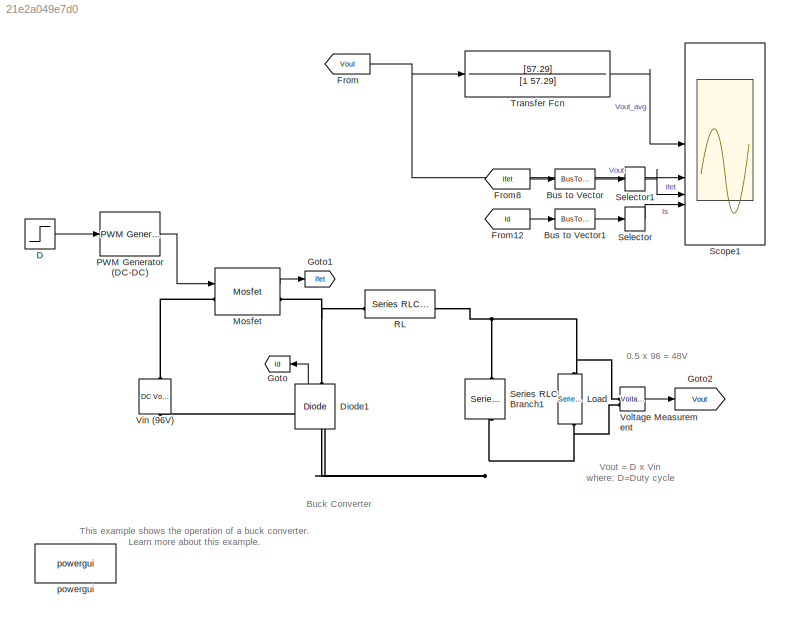
MODEL slx_21e2a049e7d0
KIND model
CONFIG AbsTol = auto
CONFIG EnableMultiTasking = on
CONFIG FixedStep = auto
CONFIG MaxStep = 1e-4
CONFIG MinStep = auto
CONFIG RelTol = 1e-4
CONFIG SampleTimeConstraint = Unconstrained
CONFIG SolverName = VariableStepAuto
CONFIG StartTime = 0.0
CONFIG StopTime = 0.008
BLOCK [BusToVector] Bus to Vector
BLOCK [BusToVector] Bus to Vector1
BLOCK [Step] D
  After = D_op
  Before = 0.5
  SampleTime = 0
  Time = 0.0035
BLOCK [Reference] Diode1  REF=spsDiodeLib/Diode
  LibrarySourceBlock = sps_lib/Power Electronics/Diode
  NameLocation = right
  SourceBlock = spsDiodeLib/Diode
  SourceType = Diode
BLOCK [From] From
  GotoTag = Vout
BLOCK [From] From12
  GotoTag = Id
BLOCK [From] From8
  GotoTag = Ifet
BLOCK [Goto] Goto
  GotoTag = Id
BLOCK [Goto] Goto1
  GotoTag = Ifet
BLOCK [Goto] Goto2
  GotoTag = Vout
BLOCK [Reference] Load  REF=spsSeriesRLCBranchLib/Series RLC Branch
  LibrarySourceBlock = sps_lib/Passives/Series RLC Branch
  NameLocation = left
  SourceBlock = spsSeriesRLCBranchLib/Series RLC Branch
  SourceType = Series RLC Branch
BLOCK [Reference] Mosfet  REF=spsMosfetLib/Mosfet
  LibrarySourceBlock = sps_lib/Power Electronics/Mosfet
  SourceBlock = spsMosfetLib/Mosfet
  SourceType = Mosfet
BLOCK [Reference] PWM Generator (DC-DC)  REF=spsPWMGeneratorDCDCLib/PWM Generator
(DC-DC)
  LibrarySourceBlock = sps_lib/Power Electronics/Power Electronics Control/PWM Generator\n(DC-DC)
  NameLocation = top
  SourceBlock = spsPWMGeneratorDCDCLib/PWM Generator\n(DC-DC)
  SourceType = PWM Generator (DC-DC)
BLOCK [Reference] RL  REF=spsSeriesRLCBranchLib/Series RLC Branch
  LibrarySourceBlock = sps_lib/Passives/Series RLC Branch
  SourceBlock = spsSeriesRLCBranchLib/Series RLC Branch
  SourceType = Series RLC Branch
BLOCK [Scope] Scope1
  Floating = off
  NumInputPorts = 4
  ScopeSpecificationString = Simulink.scopes.TimeScopeBlockCfg('CurrentConfiguration', extmgr.ConfigurationSet(extmgr.Configuration('Core','General UI',true),extmgr.Configuration('Core','Source UI',true),extmgr.Configuration('Sources','WiredSimulink',true),extmgr.Configuration('Visuals','Time Domain',true,'SerializedDisplays',{struct('MinYLimReal','-2.22905','MaxYLimReal','20.06148','YLabelReal','','MinYLimMag','0.00000','Max...<+3385ch>
BLOCK [Selector] Selector
  IndexOptions = Index vector (dialog)
  Indices = 1
  InputPortWidth = 2
  OutputSizes = 1
BLOCK [Selector] Selector1
  IndexOptions = Index vector (dialog)
  Indices = 1
  InputPortWidth = 2
  OutputSizes = 1
BLOCK [Reference] Series RLC Branch1  REF=spsSeriesRLCBranchLib/Series RLC Branch
  LibrarySourceBlock = sps_lib/Passives/Series RLC Branch
  NameLocation = left
  SourceBlock = spsSeriesRLCBranchLib/Series RLC Branch
  SourceType = Series RLC Branch
BLOCK [TransferFcn] Transfer Fcn
  Denominator = [1 57.29]
  Numerator = [57.29]
BLOCK [Reference] Vin (96V)  REF=spsDCVoltageSourceLib/DC Voltage Source
  LibrarySourceBlock = sps_lib/Sources/DC Voltage Source
  NameLocation = left
  SourceBlock = spsDCVoltageSourceLib/DC Voltage Source
  SourceType = DC Voltage Source
BLOCK [Reference] Voltage Measurement  REF=spsVoltageMeasurementLib/Voltage Measurement
  LibrarySourceBlock = sps_lib/Sensors and Measurements/Voltage Measurement
  SourceBlock = spsVoltageMeasurementLib/Voltage Measurement
  SourceType = Voltage Measurement
  UserDataPersistent = on
BLOCK [Reference] powergui  REF=sps_lib/powergui
  LibrarySourceBlock = sps_lib/powergui
  Priority = 1
  SourceBlock = sps_lib/powergui
  SourceType = PSB option menu block
ANNOTATION (root): 0.5 x 96 = 48V
ANNOTATION (root): This example shows the operation of a buck converter. Learn more about this example.
ANNOTATION (root): Vout = D x Vin where: D=Duty cycle
ANNOTATION (root): Buck Converter
LINE Bus to Vector1:1 -> Selector:1
LINE Bus to Vector:1 -> Selector1:1
LINE D:1 -> PWM Generator (DC-DC):1
LINE Diode1:1 -> Goto:1
LINE From12:1 -> Bus to Vector1:1
LINE From8:1 -> Bus to Vector:1
NET From:1 -> Scope1:2, Transfer Fcn:1
LINE Mosfet:1 -> Goto1:1
LINE PWM Generator (DC-DC):1 -> Mosfet:1
LINE Selector1:1 -> Scope1:3
LINE Selector:1 -> Scope1:4
LINE Transfer Fcn:1 -> Scope1:1
LINE Voltage Measurement:1 -> Goto2:1
PNET net1: Diode1:LConn1 -- Load:RConn1 -- Series RLC Branch1:RConn1 -- Vin (96V):LConn1 -- Voltage Measurement:LConn2
PNET net2: Diode1:RConn1 -- Mosfet:RConn1 -- RL:LConn1
PNET net3: Load:LConn1 -- RL:RConn1 -- Series RLC Branch1:LConn1 -- Voltage Measurement:LConn1
PLINE Mosfet:LConn1 -- Vin (96V):RConn1
note: NET lines group one-source signal fan-out (src -> all destinations, sorted); 1:1 wires keep LINE; PNET lines group multi-terminal physical nets as a canonical sorted terminal list (undirected conserving connections); 2-terminal nets keep the pairwise PLINE form
